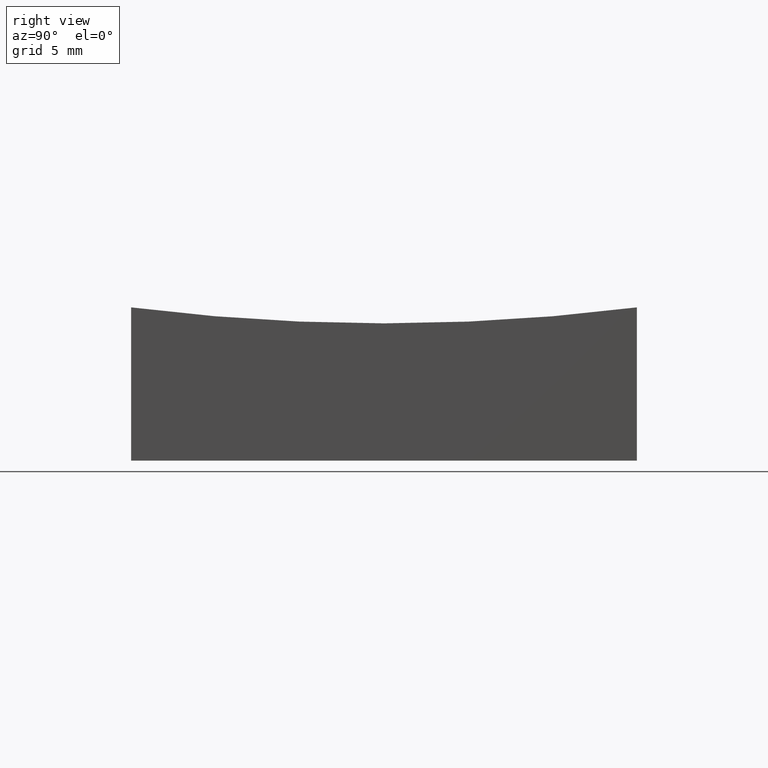
[diagram: clean part render]
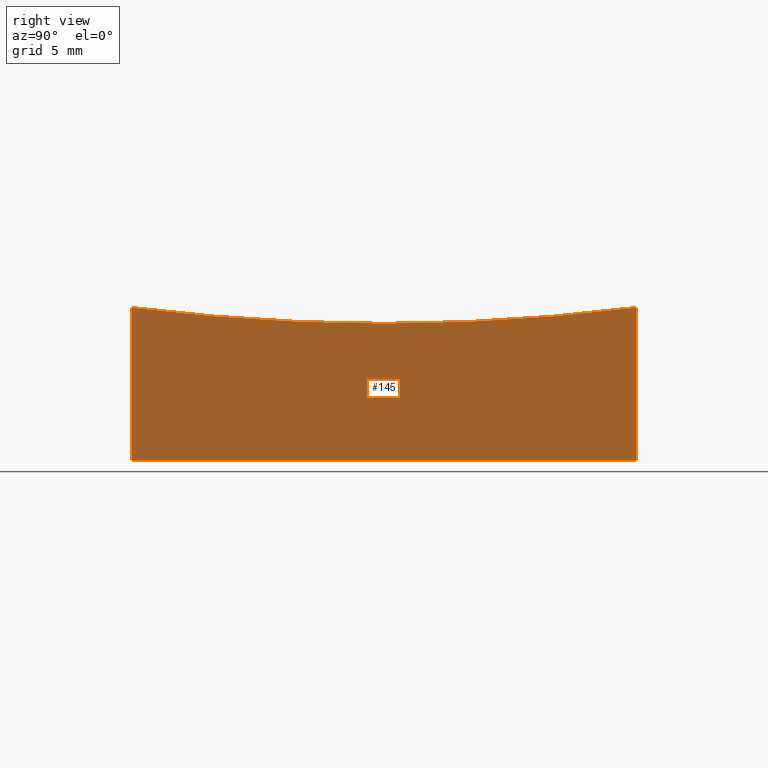
[diagram: same view with one face highlighted and labeled with its STEP entity id]
A machine part, right view. The second image highlights one B-rep face of the part: STEP entity #145.
In plain terms, the highlighted planar face has unit normal (1, 0, -0).
Its self-contained STEP definition (entity closure, byte-faithful):
#3 = VERTEX_POINT ( 'NONE', #179 ) ;
#13 = EDGE_LOOP ( 'NONE', ( #98, #95, #137, #45, #203 ) ) ;
#14 = DIRECTION ( 'NONE',  ( -1.398749534750525041E-16, 1.000000000000000000, 0.0000000000000000000 ) ) ;
#15 = AXIS2_PLACEMENT_3D ( 'NONE', #226, #209, #14 ) ;
#16 = DIRECTION ( 'NONE',  ( -1.387778780781445676E-16, 1.000000000000000000, 0.0000000000000000000 ) ) ;
#31 = VERTEX_POINT ( 'NONE', #67 ) ;
#35 = CIRCLE ( 'NONE', #194, 99.21567416492216296 ) ;
#45 = ORIENTED_EDGE ( 'NONE', *, *, #59, .F. ) ;
#53 = DIRECTION ( 'NONE',  ( 1.000000000000000000, 1.387778780781445676E-16, -0.0000000000000000000 ) ) ;
#54 = CARTESIAN_POINT ( 'NONE',  ( 12.50000000000000355, -12.50000000000000000, 20.00000000000000000 ) ) ;
#56 = CARTESIAN_POINT ( 'NONE',  ( 12.50000000000000178, 1.734723475976805714E-15, 106.0000000000000142 ) ) ;
#57 = LINE ( 'NONE', #207, #221 ) ;
#59 = EDGE_CURVE ( 'NONE', #201, #65, #164, .T. ) ;
#64 = VERTEX_POINT ( 'NONE', #139 ) ;
#65 = VERTEX_POINT ( 'NONE', #184 ) ;
#67 = CARTESIAN_POINT ( 'NONE',  ( 12.50000000000000355, -12.50000000000000000, 0.0000000000000000000 ) ) ;
#73 = DIRECTION ( 'NONE',  ( 1.000000000000000000, 1.387778780781445676E-16, -0.0000000000000000000 ) ) ;
#79 = VECTOR ( 'NONE', #186, 1000.000000000000000 ) ;
#86 = FACE_OUTER_BOUND ( 'NONE', #13, .T. ) ;
#88 = EDGE_CURVE ( 'NONE', #3, #64, #146, .T. ) ;
#95 = ORIENTED_EDGE ( 'NONE', *, *, #199, .T. ) ;
#98 = ORIENTED_EDGE ( 'NONE', *, *, #88, .F. ) ;
#101 = AXIS2_PLACEMENT_3D ( 'NONE', #228, #53, #16 ) ;
#113 = VECTOR ( 'NONE', #245, 1000.000000000000000 ) ;
#129 = CARTESIAN_POINT ( 'NONE',  ( 12.50000000000000000, 12.50000000000000000, 7.574901574852354713 ) ) ;
#137 = ORIENTED_EDGE ( 'NONE', *, *, #241, .F. ) ;
#139 = CARTESIAN_POINT ( 'NONE',  ( 12.50000000000000355, 9.629649721936179265E-32, 6.784325835077840594 ) ) ;
#145 = ADVANCED_FACE ( 'NONE', ( #86 ), #248, .T. ) ;
#146 = CIRCLE ( 'NONE', #15, 99.21567416492216296 ) ;
#164 = LINE ( 'NONE', #250, #113 ) ;
#179 = CARTESIAN_POINT ( 'NONE',  ( 12.50000000000000355, -12.50000000000000000, 7.574901574852354713 ) ) ;
#184 = CARTESIAN_POINT ( 'NONE',  ( 12.50000000000000000, 12.50000000000000000, 0.0000000000000000000 ) ) ;
#186 = DIRECTION ( 'NONE',  ( -0.0000000000000000000, -0.0000000000000000000, -1.000000000000000000 ) ) ;
#194 = AXIS2_PLACEMENT_3D ( 'NONE', #56, #73, #211 ) ;
#199 = EDGE_CURVE ( 'NONE', #3, #31, #227, .T. ) ;
#201 = VERTEX_POINT ( 'NONE', #129 ) ;
#203 = ORIENTED_EDGE ( 'NONE', *, *, #247, .F. ) ;
#207 = CARTESIAN_POINT ( 'NONE',  ( 12.50000000000000000, 12.50000000000000000, 0.0000000000000000000 ) ) ;
#209 = DIRECTION ( 'NONE',  ( 1.000000000000000000, 1.387778780781445676E-16, -0.0000000000000000000 ) ) ;
#211 = DIRECTION ( 'NONE',  ( -1.398749534750525041E-16, 1.000000000000000000, 0.0000000000000000000 ) ) ;
#221 = VECTOR ( 'NONE', #249, 1000.000000000000000 ) ;
#226 = CARTESIAN_POINT ( 'NONE',  ( 12.50000000000000178, 1.734723475976805714E-15, 106.0000000000000142 ) ) ;
#227 = LINE ( 'NONE', #54, #79 ) ;
#228 = CARTESIAN_POINT ( 'NONE',  ( 12.50000000000000000, 12.50000000000000000, 20.00000000000000000 ) ) ;
#241 = EDGE_CURVE ( 'NONE', #65, #31, #57, .T. ) ;
#245 = DIRECTION ( 'NONE',  ( -0.0000000000000000000, -0.0000000000000000000, -1.000000000000000000 ) ) ;
#247 = EDGE_CURVE ( 'NONE', #64, #201, #35, .T. ) ;
#248 = PLANE ( 'NONE',  #101 ) ;
#249 = DIRECTION ( 'NONE',  ( 1.387778780781445676E-16, -1.000000000000000000, 0.0000000000000000000 ) ) ;
#250 = CARTESIAN_POINT ( 'NONE',  ( 12.50000000000000000, 12.50000000000000000, 20.00000000000000000 ) ) ;